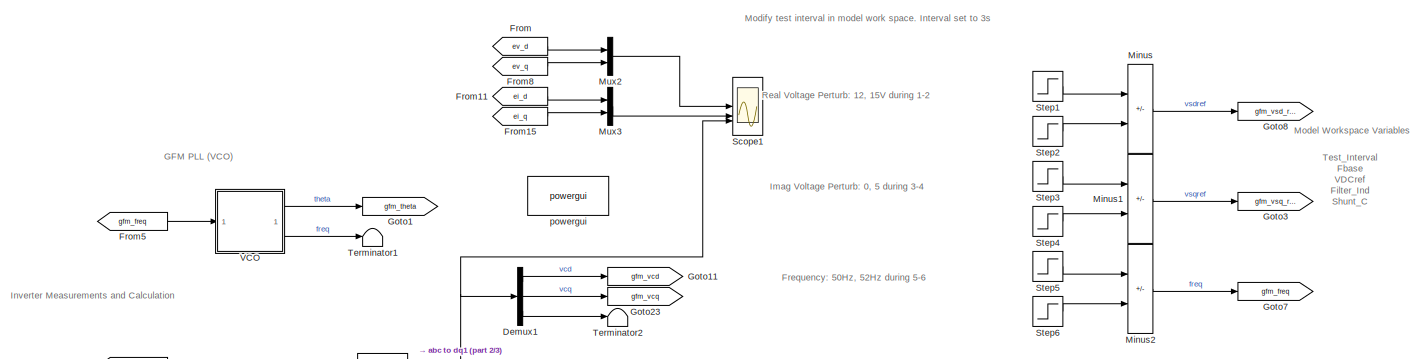
[diagram: root canvas - part 1/3, top center region]
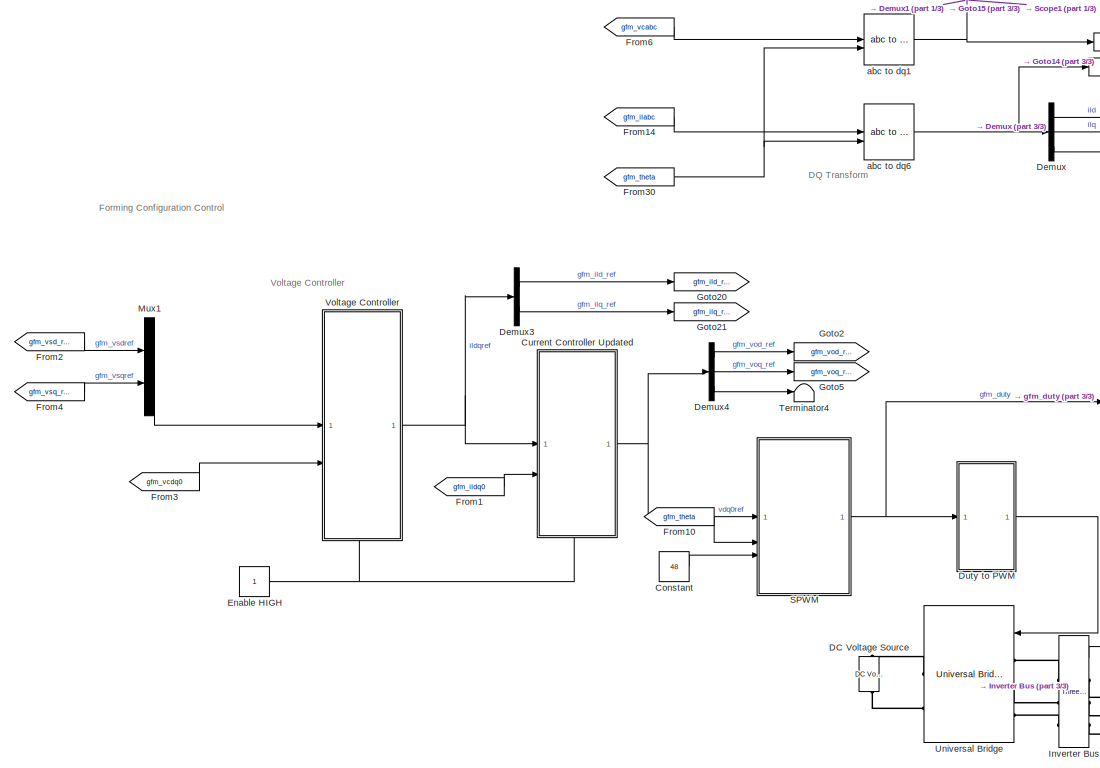
[diagram: root canvas - part 2/3, middle left region]
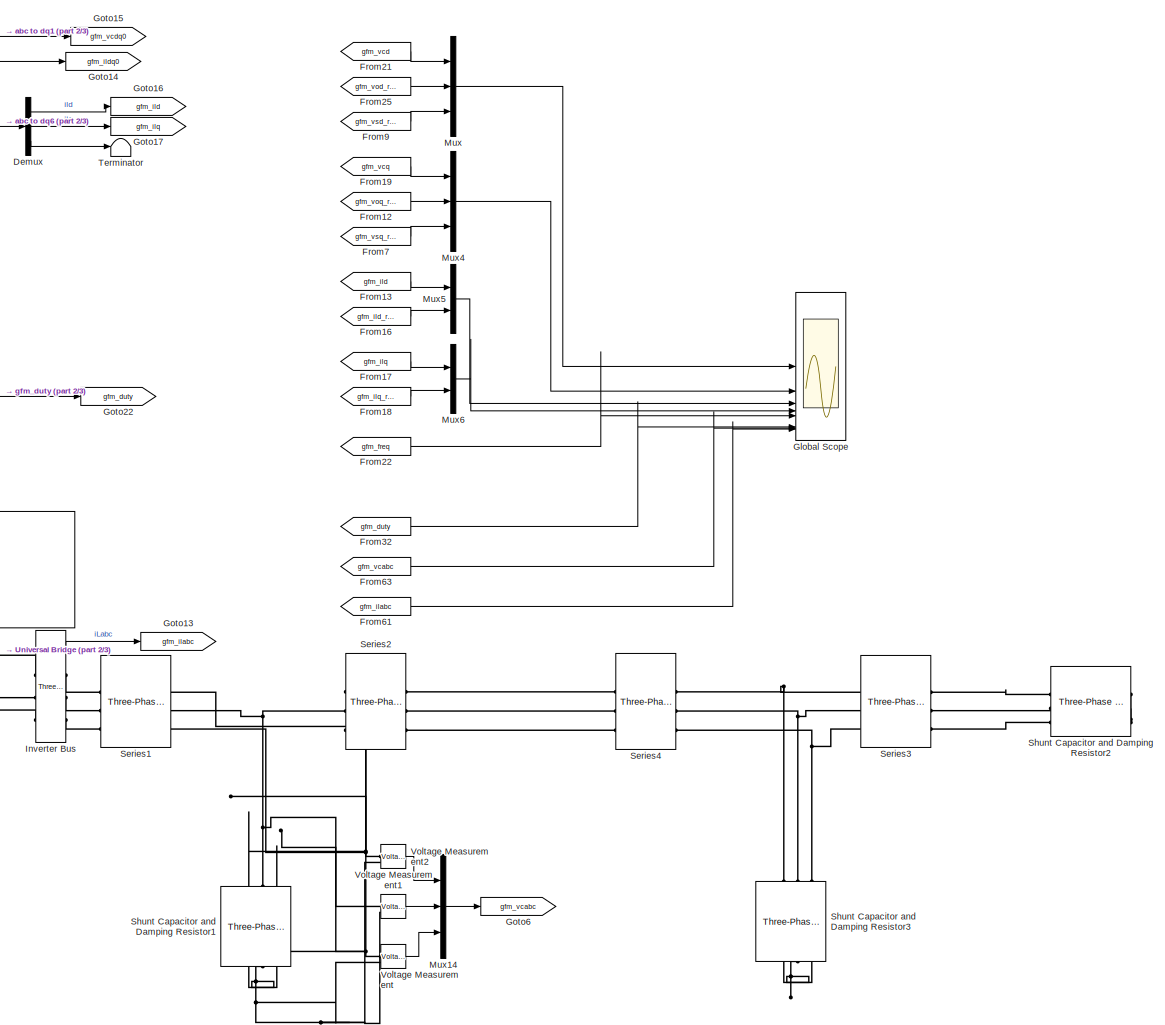
[diagram: root canvas - part 3/3, right side, full height]
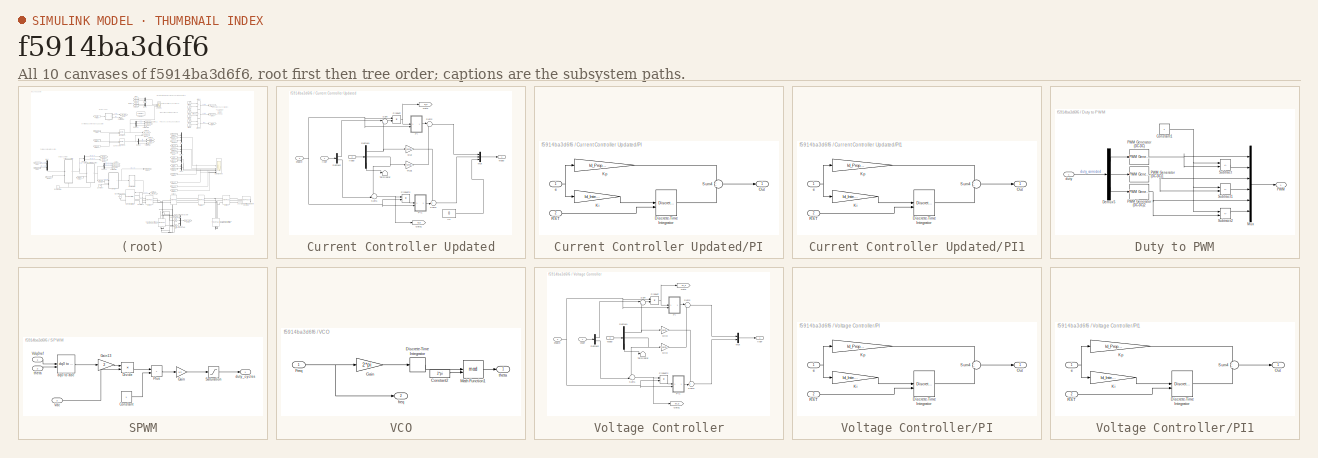
[diagram: thumbnail index - all 10 canvases of the model, root first then tree order]
MODEL slx_f5914ba3d6f6
KIND model
CONFIG AbsTol = auto
CONFIG EnableMultiTasking = off
CONFIG FixedStep = 1e-6
CONFIG MaxStep = auto
CONFIG MinStep = auto
CONFIG RelTol = 1e-3
CONFIG SampleTimeConstraint = Unconstrained
CONFIG SolverName = FixedStepAuto
CONFIG StartTime = 0.0
CONFIG StopTime = 4
WORKSPACE source: mxarray member
WORKSPACE Fbase = 50
WORKSPACE Filter_Ind = 0.00435
WORKSPACE Fs = 10000
WORKSPACE Series1_L = 0.004
WORKSPACE Series2_L = 0.00035
WORKSPACE Shunt_C = 2.2e-06
WORKSPACE Snubber_C = inf
WORKSPACE Snubber_R = 100000
WORKSPACE Test_Interval = 3
WORKSPACE Ts = 0.0001
WORKSPACE VDCref = 48
BLOCK [Constant] Constant
  Value = 48
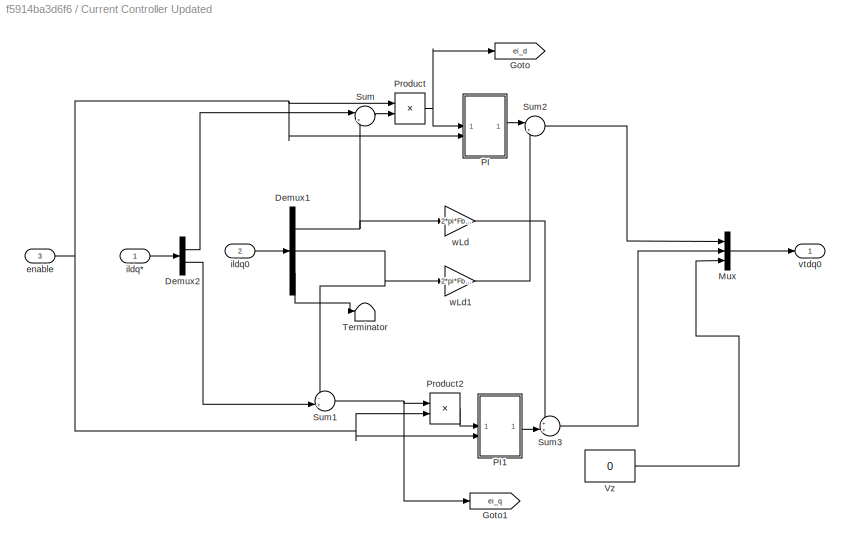
BLOCK [SubSystem] Current Controller Updated
  PortSchema = {"entries":[{"content":{"sides":[{"content":{"connectorIds":["In1","In2"]},"type":"ConnectorPlacement.EquallySpacedRectSide","uuid":"134caf41-c34b-48d0-a71a-522329c40d8c"},{"content":{"connectorIds":["Out1"],"side":"RIGHT"},"type":"ConnectorPlacement.EquallySpacedRectSide","uuid":"de6d8359-09d9-4cb7-8990-bc4b6d48f18d"},{"content":{"connectorIds":[],"side":"TOP"},"type":"ConnectorPlacement.EquallyS...<+395ch>
BLOCK [Demux] Current Controller Updated/Demux1
  Outputs = 3
BLOCK [Demux] Current Controller Updated/Demux2
  Outputs = 2
BLOCK [Goto] Current Controller Updated/Goto
  GotoTag = ei_d
  TagVisibility = global
BLOCK [Goto] Current Controller Updated/Goto1
  GotoTag = ei_q
  TagVisibility = global
BLOCK [Mux] Current Controller Updated/Mux
  DisplayOption = bar
  Inputs = 3
BLOCK [SubSystem] Current Controller Updated/PI
BLOCK [DiscreteIntegrator] Current Controller Updated/PI/Discrete-Time Integrator
  ExternalReset = either
  ICPrevOutput = DiscIntNeverNeededParam
  ICPrevScaledInput = DiscIntNeverNeededParam
  LimitOutput = on
  LowerSaturationLimit = -20000
  SampleTime = Ts
  UpperSaturationLimit = 20000
  gainval = 1
BLOCK [Gain] Current Controller Updated/PI/Ki
  Gain = Id_Integral
  OutDataTypeStr = Inherit: Same as input
  ParamDataTypeStr = Inherit: Same as input
  SaturateOnIntegerOverflow = on
BLOCK [Gain] Current Controller Updated/PI/Kp
  Gain = Id_Proportional
  OutDataTypeStr = Inherit: Same as input
  ParamDataTypeStr = Inherit: Same as input
  SaturateOnIntegerOverflow = on
BLOCK [Outport] Current Controller Updated/PI/Out
BLOCK [Inport] Current Controller Updated/PI/RST
  Port = 2
BLOCK [Sum] Current Controller Updated/PI/Sum4
  SaturateOnIntegerOverflow = on
BLOCK [Inport] Current Controller Updated/PI/e
BLOCK [SubSystem] Current Controller Updated/PI1
BLOCK [DiscreteIntegrator] Current Controller Updated/PI1/Discrete-Time Integrator
  ExternalReset = either
  ICPrevOutput = DiscIntNeverNeededParam
  ICPrevScaledInput = DiscIntNeverNeededParam
  LimitOutput = on
  LowerSaturationLimit = -20000
  SampleTime = Ts
  UpperSaturationLimit = 20000
  gainval = 1
BLOCK [Gain] Current Controller Updated/PI1/Ki
  Gain = Id_Integral
  OutDataTypeStr = Inherit: Same as input
  ParamDataTypeStr = Inherit: Same as input
  SaturateOnIntegerOverflow = on
BLOCK [Gain] Current Controller Updated/PI1/Kp
  Gain = Id_Proportional
  OutDataTypeStr = Inherit: Same as input
  ParamDataTypeStr = Inherit: Same as input
  SaturateOnIntegerOverflow = on
BLOCK [Outport] Current Controller Updated/PI1/Out
BLOCK [Inport] Current Controller Updated/PI1/RST
  Port = 2
BLOCK [Sum] Current Controller Updated/PI1/Sum4
  SaturateOnIntegerOverflow = on
BLOCK [Inport] Current Controller Updated/PI1/e
BLOCK [Product] Current Controller Updated/Product
  RndMeth = Zero
BLOCK [Product] Current Controller Updated/Product2
  RndMeth = Zero
BLOCK [Sum] Current Controller Updated/Sum
  Inputs = |+-
BLOCK [Sum] Current Controller Updated/Sum1
  Inputs = -+|
BLOCK [Sum] Current Controller Updated/Sum2
  Inputs = |+-
BLOCK [Sum] Current Controller Updated/Sum3
  Inputs = ++|
BLOCK [Terminator] Current Controller Updated/Terminator
BLOCK [Constant] Current Controller Updated/Vz
  Value = 0
BLOCK [Inport] Current Controller Updated/enable
  Port = 3
BLOCK [Inport] Current Controller Updated/ildq*
BLOCK [Inport] Current Controller Updated/ildq0
  Port = 2
BLOCK [Outport] Current Controller Updated/vtdq0
BLOCK [Gain] Current Controller Updated/wLd
  Gain = 2*pi*Fbase*Filter_Ind
BLOCK [Gain] Current Controller Updated/wLd1
  Gain = 2*pi*Fbase*Filter_Ind
BLOCK [Reference] DC Voltage Source  REF=spsDCVoltageSourceLib/DC Voltage Source
  LibrarySourceBlock = sps_lib/Sources/DC Voltage Source
  SourceBlock = spsDCVoltageSourceLib/DC Voltage Source
  SourceType = DC Voltage Source
BLOCK [Demux] Demux
  Outputs = 3
BLOCK [Demux] Demux1
  Outputs = 3
BLOCK [Demux] Demux3
  Outputs = 2
BLOCK [Demux] Demux4
  Outputs = 3
BLOCK [SubSystem] Duty to PWM
BLOCK [Constant] Duty to PWM/Constant1
BLOCK [Demux] Duty to PWM/Demux5
  Outputs = 3
BLOCK [Mux] Duty to PWM/Mux
  DisplayOption = bar
  Inputs = 6
BLOCK [Outport] Duty to PWM/PWM
BLOCK [Reference] Duty to PWM/PWM Generator (DC-DC)  REF=spsPWMGeneratorDCDCLib/PWM Generator
(DC-DC)
  LibrarySourceBlock = sps_lib/Power Electronics/Power Electronics Control/PWM Generator\n(DC-DC)
  SourceBlock = spsPWMGeneratorDCDCLib/PWM Generator\n(DC-DC)
  SourceType = PWM Generator (DC-DC)
BLOCK [Reference] Duty to PWM/PWM Generator (DC-DC)1  REF=spsPWMGeneratorDCDCLib/PWM Generator
(DC-DC)
  LibrarySourceBlock = sps_lib/Power Electronics/Power Electronics Control/PWM Generator\n(DC-DC)
  SourceBlock = spsPWMGeneratorDCDCLib/PWM Generator\n(DC-DC)
  SourceType = PWM Generator (DC-DC)
BLOCK [Reference] Duty to PWM/PWM Generator (DC-DC)2  REF=spsPWMGeneratorDCDCLib/PWM Generator
(DC-DC)
  LibrarySourceBlock = sps_lib/Power Electronics/Power Electronics Control/PWM Generator\n(DC-DC)
  SourceBlock = spsPWMGeneratorDCDCLib/PWM Generator\n(DC-DC)
  SourceType = PWM Generator (DC-DC)
BLOCK [Sum] Duty to PWM/Subtract
  IconShape = rectangular
  Inputs = +-
BLOCK [Sum] Duty to PWM/Subtract1
  IconShape = rectangular
  Inputs = +-
BLOCK [Sum] Duty to PWM/Subtract2
  IconShape = rectangular
  Inputs = +-
BLOCK [Inport] Duty to PWM/duty
BLOCK [Constant] Enable HIGH
BLOCK [From] From
  GotoTag = ev_d
  TagVisibility = global
BLOCK [From] From1
  CloseFcn = tagdialog Close
  GotoTag = gfm_ildq0
  NameLocation = top
BLOCK [From] From10
  CloseFcn = tagdialog Close
  GotoTag = gfm_theta
  NameLocation = top
BLOCK [From] From11
  GotoTag = ei_d
  TagVisibility = global
BLOCK [From] From12
  CloseFcn = tagdialog Close
  Commented = on
  GotoTag = gfm_voq_ref
  NameLocation = top
BLOCK [From] From13
  CloseFcn = tagdialog Close
  Commented = on
  GotoTag = gfm_ild
  NameLocation = top
BLOCK [From] From14
  CloseFcn = tagdialog Close
  GotoTag = gfm_ilabc
  NameLocation = top
BLOCK [From] From15
  GotoTag = ei_q
  TagVisibility = global
BLOCK [From] From16
  CloseFcn = tagdialog Close
  Commented = on
  GotoTag = gfm_ild_ref
  NameLocation = top
BLOCK [From] From17
  CloseFcn = tagdialog Close
  Commented = on
  GotoTag = gfm_ilq
  NameLocation = top
BLOCK [From] From18
  CloseFcn = tagdialog Close
  Commented = on
  GotoTag = gfm_ilq_ref
  NameLocation = top
BLOCK [From] From19
  CloseFcn = tagdialog Close
  GotoTag = gfm_vcq
  NameLocation = top
BLOCK [From] From2
  CloseFcn = tagdialog Close
  GotoTag = gfm_vsd_ref
  NameLocation = top
BLOCK [From] From21
  CloseFcn = tagdialog Close
  GotoTag = gfm_vcd
  NameLocation = top
BLOCK [From] From22
  Commented = on
  GotoTag = gfm_freq
BLOCK [From] From25
  CloseFcn = tagdialog Close
  Commented = on
  GotoTag = gfm_vod_ref
  NameLocation = top
BLOCK [From] From3
  CloseFcn = tagdialog Close
  GotoTag = gfm_vcdq0
  NameLocation = top
BLOCK [From] From30
  CloseFcn = tagdialog Close
  GotoTag = gfm_theta
  NameLocation = top
BLOCK [From] From32
  CloseFcn = tagdialog Close
  Commented = on
  GotoTag = gfm_duty
  NameLocation = top
BLOCK [From] From4
  CloseFcn = tagdialog Close
  GotoTag = gfm_vsq_ref
  NameLocation = top
BLOCK [From] From5
  GotoTag = gfm_freq
BLOCK [From] From6
  CloseFcn = tagdialog Close
  GotoTag = gfm_vcabc
  NameLocation = top
BLOCK [From] From61
  CloseFcn = tagdialog Close
  Commented = on
  GotoTag = gfm_ilabc
  NameLocation = top
BLOCK [From] From63
  CloseFcn = tagdialog Close
  Commented = on
  GotoTag = gfm_vcabc
  NameLocation = top
BLOCK [From] From7
  CloseFcn = tagdialog Close
  GotoTag = gfm_vsq_ref
  NameLocation = top
BLOCK [From] From8
  GotoTag = ev_q
  TagVisibility = global
BLOCK [From] From9
  CloseFcn = tagdialog Close
  GotoTag = gfm_vsd_ref
  NameLocation = top
BLOCK [Scope] Global Scope
  Floating = off
  NumInputPorts = 12
  ScopeSpecificationString = Simulink.scopes.TimeScopeBlockCfg('CurrentConfiguration', extmgr.ConfigurationSet(extmgr.Configuration('Core','General UI',true,'FigureColor',[1 1 1]),extmgr.Configuration('Core','Source UI',true),extmgr.Configuration('Sources','WiredSimulink',true,'DataLoggingSaveFormat','StructureWithTime','DataLoggingVariableName','GFMData','DataLogging',true),extmgr.Configuration('Visuals','Time Domain',true,'...<+10765ch>
BLOCK [Goto] Goto1
  GotoTag = gfm_theta
BLOCK [Goto] Goto11
  GotoTag = gfm_vcd
BLOCK [Goto] Goto13
  GotoTag = gfm_ilabc
BLOCK [Goto] Goto14
  GotoTag = gfm_ildq0
BLOCK [Goto] Goto15
  GotoTag = gfm_vcdq0
BLOCK [Goto] Goto16
  GotoTag = gfm_ild
BLOCK [Goto] Goto17
  GotoTag = gfm_ilq
BLOCK [Goto] Goto2
  GotoTag = gfm_vod_ref
BLOCK [Goto] Goto20
  GotoTag = gfm_ild_ref
BLOCK [Goto] Goto21
  GotoTag = gfm_ilq_ref
BLOCK [Goto] Goto22
  GotoTag = gfm_duty
BLOCK [Goto] Goto23
  GotoTag = gfm_vcq
BLOCK [Goto] Goto3
  GotoTag = gfm_vsq_ref
BLOCK [Goto] Goto5
  GotoTag = gfm_voq_ref
BLOCK [Goto] Goto6
  GotoTag = gfm_vcabc
BLOCK [Goto] Goto7
  GotoTag = gfm_freq
BLOCK [Goto] Goto8
  GotoTag = gfm_vsd_ref
BLOCK [Reference] Inverter Bus  REF=spsThreePhaseVIMeasurementLib/Three-Phase
V-I Measurement
  SourceBlock = spsThreePhaseVIMeasurementLib/Three-Phase\nV-I Measurement
  SourceType = Three-Phase VI Measurement
BLOCK [Sum] Minus
  IconShape = rectangular
  Inputs = +-
BLOCK [Sum] Minus1
  IconShape = rectangular
  Inputs = +-
BLOCK [Sum] Minus2
  IconShape = rectangular
  Inputs = +-
BLOCK [Mux] Mux
  DisplayOption = bar
  Inputs = 3
BLOCK [Mux] Mux1
  DisplayOption = bar
  Inputs = 2
BLOCK [Mux] Mux14
  DisplayOption = bar
  Inputs = 3
BLOCK [Mux] Mux2
  DisplayOption = bar
  Inputs = 2
BLOCK [Mux] Mux3
  DisplayOption = bar
  Inputs = 2
BLOCK [Mux] Mux4
  DisplayOption = bar
  Inputs = 3
BLOCK [Mux] Mux5
  Commented = on
  DisplayOption = bar
  Inputs = 2
BLOCK [Mux] Mux6
  Commented = on
  DisplayOption = bar
  Inputs = 2
BLOCK [SubSystem] SPWM
BLOCK [Constant] SPWM/Constant
BLOCK [Product] SPWM/Divide
  Inputs = */
BLOCK [Gain] SPWM/Gain
  Gain = 1/2
BLOCK [Gain] SPWM/Gain13
  Gain = 2
BLOCK [Sum] SPWM/Plus
  IconShape = rectangular
BLOCK [Saturate] SPWM/Saturation
  LowerLimit = 0.1
  UpperLimit = 0.9
BLOCK [Inport] SPWM/Vdc
  Port = 3
BLOCK [Inport] SPWM/Vdq0ref
BLOCK [Reference] SPWM/dq0 to abc  REF=spsdq0toabcLib/dq0 to abc
  LibrarySourceBlock = sps_lib/Control/dq0 to abc
  SourceBlock = spsdq0toabcLib/dq0 to abc
  SourceType = dq0 to abc Transformation
BLOCK [Outport] SPWM/duty_cycles
BLOCK [Inport] SPWM/theta
  Port = 2
BLOCK [Scope] Scope1
  Commented = on
  Floating = off
  NumInputPorts = 3
  ScopeSpecificationString = Simulink.scopes.TimeScopeBlockCfg('CurrentConfiguration', extmgr.ConfigurationSet(extmgr.Configuration('Core','General UI',true),extmgr.Configuration('Core','Source UI',true),extmgr.Configuration('Sources','WiredSimulink',true,'DataLoggingVariableName','ScopeData2'),extmgr.Configuration('Visuals','Time Domain',true,'SerializedDisplays',{struct('MinYLimReal','-7.49198','MaxYLimReal','14.16578','YLa...<+2757ch>
BLOCK [Reference] Series1  REF=spsThreePhaseSeriesRLCBranchLib/Three-Phase
Series RLC Branch
  AttributesFormatString = \n
  SourceBlock = spsThreePhaseSeriesRLCBranchLib/Three-Phase\nSeries RLC Branch
  SourceType = Three-Phase Series RLC Branch
BLOCK [Reference] Series2  REF=spsThreePhaseSeriesRLCBranchLib/Three-Phase
Series RLC Branch
  AttributesFormatString = \n
  SourceBlock = spsThreePhaseSeriesRLCBranchLib/Three-Phase\nSeries RLC Branch
  SourceType = Three-Phase Series RLC Branch
BLOCK [Reference] Series3  REF=spsThreePhaseSeriesRLCBranchLib/Three-Phase
Series RLC Branch
  AttributesFormatString = \n
  SourceBlock = spsThreePhaseSeriesRLCBranchLib/Three-Phase\nSeries RLC Branch
  SourceType = Three-Phase Series RLC Branch
BLOCK [Reference] Series4  REF=spsThreePhaseSeriesRLCBranchLib/Three-Phase
Series RLC Branch
  AttributesFormatString = \n
  SourceBlock = spsThreePhaseSeriesRLCBranchLib/Three-Phase\nSeries RLC Branch
  SourceType = Three-Phase Series RLC Branch
BLOCK [Reference] Shunt Capacitor and Damping Resistor1  REF=spsThreePhaseSeriesRLCBranchLib/Three-Phase
Series RLC Branch
  AttributesFormatString = \n
  NameLocation = left
  SourceBlock = spsThreePhaseSeriesRLCBranchLib/Three-Phase\nSeries RLC Branch
  SourceType = Three-Phase Series RLC Branch
BLOCK [Reference] Shunt Capacitor and Damping Resistor2  REF=spsThreePhaseSeriesRLCBranchLib/Three-Phase
Series RLC Branch
  AttributesFormatString = \n
  NameLocation = top
  SourceBlock = spsThreePhaseSeriesRLCBranchLib/Three-Phase\nSeries RLC Branch
  SourceType = Three-Phase Series RLC Branch
BLOCK [Reference] Shunt Capacitor and Damping Resistor3  REF=spsThreePhaseSeriesRLCBranchLib/Three-Phase
Series RLC Branch
  AttributesFormatString = \n
  NameLocation = left
  SourceBlock = spsThreePhaseSeriesRLCBranchLib/Three-Phase\nSeries RLC Branch
  SourceType = Three-Phase Series RLC Branch
BLOCK [Step] Step1
  After = 15
  Before = 12
  Time = Test_Interval*1
BLOCK [Step] Step2
  After = 3
  Time = Test_Interval*2
BLOCK [Step] Step3
  After = 5
  Time = Test_Interval*3
BLOCK [Step] Step4
  After = 5
  Time = Test_Interval*4
BLOCK [Step] Step5
  After = 52
  Before = 50
  SampleTime = 0
  Time = Test_Interval*5
BLOCK [Step] Step6
  After = 2
  Time = Test_Interval*6
BLOCK [Terminator] Terminator
BLOCK [Terminator] Terminator1
BLOCK [Terminator] Terminator2
BLOCK [Terminator] Terminator4
BLOCK [Reference] Universal Bridge  REF=spsUniversalBridgeLib/Universal Bridge
  SourceBlock = spsUniversalBridgeLib/Universal Bridge
  SourceType = Universal Bridge
BLOCK [SubSystem] VCO
BLOCK [Constant] VCO/Constant2
  NameLocation = top
  Value = 2*pi
BLOCK [DiscreteIntegrator] VCO/Discrete-Time Integrator
  ICPrevOutput = DiscIntNeverNeededParam
  ICPrevScaledInput = DiscIntNeverNeededParam
  SampleTime = Ts
BLOCK [Inport] VCO/Freq
BLOCK [Gain] VCO/Gain
  Gain = 2*pi
BLOCK [Math] VCO/Math Function1
  Operator = mod
  SignedPower = on
BLOCK [Outport] VCO/freq
  Port = 2
BLOCK [Outport] VCO/theta
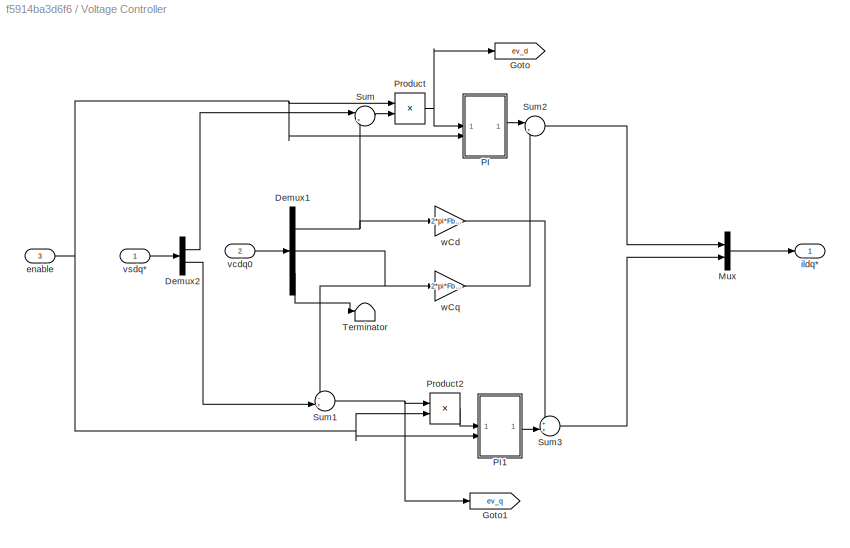
BLOCK [SubSystem] Voltage Controller
  PortSchema = {"entries":[{"content":{"sides":[{"content":{"connectorIds":["In1","In2"]},"type":"ConnectorPlacement.EquallySpacedRectSide","uuid":"134caf41-c34b-48d0-a71a-522329c40d8c"},{"content":{"connectorIds":["Out1"],"side":"RIGHT"},"type":"ConnectorPlacement.EquallySpacedRectSide","uuid":"de6d8359-09d9-4cb7-8990-bc4b6d48f18d"},{"content":{"connectorIds":[],"side":"TOP"},"type":"ConnectorPlacement.EquallyS...<+395ch>
BLOCK [Demux] Voltage Controller/Demux1
  Outputs = 3
BLOCK [Demux] Voltage Controller/Demux2
  Outputs = 2
BLOCK [Goto] Voltage Controller/Goto
  GotoTag = ev_d
  TagVisibility = global
BLOCK [Goto] Voltage Controller/Goto1
  GotoTag = ev_q
  TagVisibility = global
BLOCK [Mux] Voltage Controller/Mux
  DisplayOption = bar
  Inputs = 2
BLOCK [SubSystem] Voltage Controller/PI
BLOCK [DiscreteIntegrator] Voltage Controller/PI/Discrete-Time Integrator
  ExternalReset = either
  ICPrevOutput = DiscIntNeverNeededParam
  ICPrevScaledInput = DiscIntNeverNeededParam
  LimitOutput = on
  LowerSaturationLimit = -2000
  SampleTime = Ts
  UpperSaturationLimit = 2000
  gainval = 1
BLOCK [Gain] Voltage Controller/PI/Ki
  Gain = Id_Integral
  OutDataTypeStr = Inherit: Same as input
  ParamDataTypeStr = Inherit: Same as input
  SaturateOnIntegerOverflow = on
BLOCK [Gain] Voltage Controller/PI/Kp
  Gain = Id_Proportional
  OutDataTypeStr = Inherit: Same as input
  ParamDataTypeStr = Inherit: Same as input
  SaturateOnIntegerOverflow = on
BLOCK [Outport] Voltage Controller/PI/Out
BLOCK [Inport] Voltage Controller/PI/RST
  Port = 2
BLOCK [Sum] Voltage Controller/PI/Sum4
  SaturateOnIntegerOverflow = on
BLOCK [Inport] Voltage Controller/PI/e
BLOCK [SubSystem] Voltage Controller/PI1
BLOCK [DiscreteIntegrator] Voltage Controller/PI1/Discrete-Time Integrator
  ExternalReset = either
  ICPrevOutput = DiscIntNeverNeededParam
  ICPrevScaledInput = DiscIntNeverNeededParam
  LimitOutput = on
  LowerSaturationLimit = -2000
  SampleTime = Ts
  UpperSaturationLimit = 2000
  gainval = 1
BLOCK [Gain] Voltage Controller/PI1/Ki
  Gain = Id_Integral
  OutDataTypeStr = Inherit: Same as input
  ParamDataTypeStr = Inherit: Same as input
  SaturateOnIntegerOverflow = on
BLOCK [Gain] Voltage Controller/PI1/Kp
  Gain = Id_Proportional
  OutDataTypeStr = Inherit: Same as input
  ParamDataTypeStr = Inherit: Same as input
  SaturateOnIntegerOverflow = on
BLOCK [Outport] Voltage Controller/PI1/Out
BLOCK [Inport] Voltage Controller/PI1/RST
  Port = 2
BLOCK [Sum] Voltage Controller/PI1/Sum4
  SaturateOnIntegerOverflow = on
BLOCK [Inport] Voltage Controller/PI1/e
BLOCK [Product] Voltage Controller/Product
  RndMeth = Zero
BLOCK [Product] Voltage Controller/Product2
  RndMeth = Zero
BLOCK [Sum] Voltage Controller/Sum
  Inputs = |+-
BLOCK [Sum] Voltage Controller/Sum1
  Inputs = -+|
BLOCK [Sum] Voltage Controller/Sum2
  Inputs = |+-
BLOCK [Sum] Voltage Controller/Sum3
  Inputs = ++|
BLOCK [Terminator] Voltage Controller/Terminator
BLOCK [Inport] Voltage Controller/enable
  Port = 3
BLOCK [Outport] Voltage Controller/ildq*
BLOCK [Inport] Voltage Controller/vcdq0
  Port = 2
BLOCK [Inport] Voltage Controller/vsdq*
BLOCK [Gain] Voltage Controller/wCd
  Gain = 2*pi*Fbase*Shunt_C
BLOCK [Gain] Voltage Controller/wCq
  Gain = 2*pi*Fbase*Shunt_C
BLOCK [Reference] Voltage Measurement  REF=spsVoltageMeasurementLib/Voltage Measurement
  LibrarySourceBlock = sps_lib/Sensors and Measurements/Voltage Measurement
  SourceBlock = spsVoltageMeasurementLib/Voltage Measurement
  SourceType = Voltage Measurement
  UserDataPersistent = on
BLOCK [Reference] Voltage Measurement1  REF=spsVoltageMeasurementLib/Voltage Measurement
  LibrarySourceBlock = sps_lib/Sensors and Measurements/Voltage Measurement
  SourceBlock = spsVoltageMeasurementLib/Voltage Measurement
  SourceType = Voltage Measurement
  UserDataPersistent = on
BLOCK [Reference] Voltage Measurement2  REF=spsVoltageMeasurementLib/Voltage Measurement
  LibrarySourceBlock = sps_lib/Sensors and Measurements/Voltage Measurement
  SourceBlock = spsVoltageMeasurementLib/Voltage Measurement
  SourceType = Voltage Measurement
  UserDataPersistent = on
BLOCK [Reference] abc to dq1  REF=spsabctodq0Lib/abc to dq0
  LibrarySourceBlock = sps_lib/Control/abc to dq0
  SourceBlock = spsabctodq0Lib/abc to dq0
  SourceType = abc to dq0 Transformation
BLOCK [Reference] abc to dq6  REF=spsabctodq0Lib/abc to dq0
  LibrarySourceBlock = sps_lib/Control/abc to dq0
  SourceBlock = spsabctodq0Lib/abc to dq0
  SourceType = abc to dq0 Transformation
BLOCK [Reference] powergui  REF=spspowerguiLib/powergui
  Priority = 1
  SourceBlock = spspowerguiLib/powergui
  SourceType = PSB option menu block
ANNOTATION (root): DQ Transform
ANNOTATION (root): Forming Configuration Control
ANNOTATION (root): Frequency: 50Hz, 52Hz during 5-6
ANNOTATION (root): GFM PLL (VCO)
ANNOTATION (root): Imag Voltage Perturb: 0, 5 during 3-4
ANNOTATION (root): Inverter Measurements and Calculation
ANNOTATION (root): Model Workspace Variables
ANNOTATION (root): Modify test interval in model work space. Interval set to 3s
ANNOTATION (root): Real Voltage Perturb: 12, 15V during 1-2
ANNOTATION (root): Test_Interval Fbase VDCref Filter_Ind Shunt_C
ANNOTATION (root): Voltage Controller
LINE Constant:1 -> SPWM:3
NET Current Controller Updated/Demux1:1 -> Current Controller Updated/Sum:2, Current Controller Updated/wLd:1
NET Current Controller Updated/Demux1:2 -> Current Controller Updated/Sum1:1, Current Controller Updated/wLd1:1
LINE Current Controller Updated/Demux1:3 -> Current Controller Updated/Terminator:1
LINE Current Controller Updated/Demux2:1 -> Current Controller Updated/Sum:1
LINE Current Controller Updated/Demux2:2 -> Current Controller Updated/Sum1:2
LINE Current Controller Updated/Mux:1 -> Current Controller Updated/vtdq0:1
LINE Current Controller Updated/PI/Discrete-Time Integrator:1 -> Current Controller Updated/PI/Sum4:2
LINE Current Controller Updated/PI/Ki:1 -> Current Controller Updated/PI/Discrete-Time Integrator:1
LINE Current Controller Updated/PI/Kp:1 -> Current Controller Updated/PI/Sum4:1
LINE Current Controller Updated/PI/RST:1 -> Current Controller Updated/PI/Discrete-Time Integrator:2
LINE Current Controller Updated/PI/Sum4:1 -> Current Controller Updated/PI/Out:1
NET Current Controller Updated/PI/e:1 -> Current Controller Updated/PI/Ki:1, Current Controller Updated/PI/Kp:1
LINE Current Controller Updated/PI1/Discrete-Time Integrator:1 -> Current Controller Updated/PI1/Sum4:2
LINE Current Controller Updated/PI1/Ki:1 -> Current Controller Updated/PI1/Discrete-Time Integrator:1
LINE Current Controller Updated/PI1/Kp:1 -> Current Controller Updated/PI1/Sum4:1
LINE Current Controller Updated/PI1/RST:1 -> Current Controller Updated/PI1/Discrete-Time Integrator:2
LINE Current Controller Updated/PI1/Sum4:1 -> Current Controller Updated/PI1/Out:1
NET Current Controller Updated/PI1/e:1 -> Current Controller Updated/PI1/Ki:1, Current Controller Updated/PI1/Kp:1
LINE Current Controller Updated/PI1:1 -> Current Controller Updated/Sum3:2
LINE Current Controller Updated/PI:1 -> Current Controller Updated/Sum2:1
LINE Current Controller Updated/Product2:1 -> Current Controller Updated/PI1:1
NET Current Controller Updated/Product:1 -> Current Controller Updated/Goto:1, Current Controller Updated/PI:1
NET Current Controller Updated/Sum1:1 -> Current Controller Updated/Goto1:1, Current Controller Updated/Product2:1
LINE Current Controller Updated/Sum2:1 -> Current Controller Updated/Mux:1
LINE Current Controller Updated/Sum3:1 -> Current Controller Updated/Mux:2
LINE Current Controller Updated/Sum:1 -> Current Controller Updated/Product:2
LINE Current Controller Updated/Vz:1 -> Current Controller Updated/Mux:3
NET Current Controller Updated/enable:1 -> Current Controller Updated/PI1:2, Current Controller Updated/PI:2, Current Controller Updated/Product2:2, Current Controller Updated/Product:1
LINE Current Controller Updated/ildq*:1 -> Current Controller Updated/Demux2:1
LINE Current Controller Updated/ildq0:1 -> Current Controller Updated/Demux1:1
LINE Current Controller Updated/wLd1:1 -> Current Controller Updated/Sum2:2
LINE Current Controller Updated/wLd:1 -> Current Controller Updated/Sum3:1
NET Current Controller Updated:1 -> Demux4:1, SPWM:1
LINE Demux1:1 -> Goto11:1
LINE Demux1:2 -> Goto23:1
LINE Demux1:3 -> Terminator2:1
LINE Demux3:1 -> Goto20:1
LINE Demux3:2 -> Goto21:1
LINE Demux4:1 -> Goto2:1
LINE Demux4:2 -> Goto5:1
LINE Demux4:3 -> Terminator4:1
LINE Demux:1 -> Goto16:1
LINE Demux:2 -> Goto17:1
LINE Demux:3 -> Terminator:1
NET Duty to PWM/Constant1:1 -> Duty to PWM/Subtract1:1, Duty to PWM/Subtract2:1, Duty to PWM/Subtract:1
LINE Duty to PWM/Demux5:1 -> Duty to PWM/PWM Generator (DC-DC):1
LINE Duty to PWM/Demux5:2 -> Duty to PWM/PWM Generator (DC-DC)1:1
LINE Duty to PWM/Demux5:3 -> Duty to PWM/PWM Generator (DC-DC)2:1
LINE Duty to PWM/Mux:1 -> Duty to PWM/PWM:1
NET Duty to PWM/PWM Generator (DC-DC)1:1 -> Duty to PWM/Mux:3, Duty to PWM/Subtract1:2
NET Duty to PWM/PWM Generator (DC-DC)2:1 -> Duty to PWM/Mux:5, Duty to PWM/Subtract2:2
NET Duty to PWM/PWM Generator (DC-DC):1 -> Duty to PWM/Mux:1, Duty to PWM/Subtract:2
LINE Duty to PWM/Subtract1:1 -> Duty to PWM/Mux:4
LINE Duty to PWM/Subtract2:1 -> Duty to PWM/Mux:6
LINE Duty to PWM/Subtract:1 -> Duty to PWM/Mux:2
LINE Duty to PWM/duty:1 -> Duty to PWM/Demux5:1
LINE Duty to PWM:1 -> Universal Bridge:1
NET Enable HIGH:1 -> Current Controller Updated:3, Voltage Controller:3
LINE From10:1 -> SPWM:2
LINE From11:1 -> Mux3:1
LINE From12:1 -> Mux4:2
LINE From13:1 -> Mux5:1
LINE From14:1 -> abc to dq6:1
LINE From15:1 -> Mux3:2
LINE From16:1 -> Mux5:2
LINE From17:1 -> Mux6:1
LINE From18:1 -> Mux6:2
LINE From19:1 -> Mux4:1
LINE From1:1 -> Current Controller Updated:2
LINE From21:1 -> Mux:1
LINE From22:1 -> Global Scope:5
LINE From25:1 -> Mux:2
LINE From2:1 -> Mux1:1
NET From30:1 -> abc to dq1:2, abc to dq6:2
LINE From32:1 -> Global Scope:10
LINE From3:1 -> Voltage Controller:2
LINE From4:1 -> Mux1:2
LINE From5:1 -> VCO:1
LINE From61:1 -> Global Scope:12
LINE From63:1 -> Global Scope:11
LINE From6:1 -> abc to dq1:1
LINE From7:1 -> Mux4:3
LINE From8:1 -> Mux2:2
LINE From9:1 -> Mux:3
LINE From:1 -> Mux2:1
LINE Inverter Bus:1 -> Goto13:1
LINE Minus1:1 -> Goto3:1
LINE Minus2:1 -> Goto7:1
LINE Minus:1 -> Goto8:1
LINE Mux14:1 -> Goto6:1
LINE Mux1:1 -> Voltage Controller:1
LINE Mux2:1 -> Scope1:1
LINE Mux3:1 -> Scope1:2
LINE Mux4:1 -> Global Scope:2
LINE Mux5:1 -> Global Scope:3
LINE Mux6:1 -> Global Scope:4
LINE Mux:1 -> Global Scope:1
LINE SPWM/Constant:1 -> SPWM/Plus:2
LINE SPWM/Divide:1 -> SPWM/Plus:1
LINE SPWM/Gain13:1 -> SPWM/Divide:1
LINE SPWM/Gain:1 -> SPWM/Saturation:1
LINE SPWM/Plus:1 -> SPWM/Gain:1
LINE SPWM/Saturation:1 -> SPWM/duty_cycles:1
LINE SPWM/Vdc:1 -> SPWM/Divide:2
LINE SPWM/Vdq0ref:1 -> SPWM/dq0 to abc:1
LINE SPWM/dq0 to abc:1 -> SPWM/Gain13:1
LINE SPWM/theta:1 -> SPWM/dq0 to abc:2
NET SPWM:1 -> Duty to PWM:1, Goto22:1
LINE Step1:1 -> Minus:1
LINE Step2:1 -> Minus:2
LINE Step3:1 -> Minus1:1
LINE Step4:1 -> Minus1:2
LINE Step5:1 -> Minus2:1
LINE Step6:1 -> Minus2:2
LINE VCO/Constant2:1 -> VCO/Math Function1:2
LINE VCO/Discrete-Time Integrator:1 -> VCO/Math Function1:1
NET VCO/Freq:1 -> VCO/Gain:1, VCO/freq:1
LINE VCO/Gain:1 -> VCO/Discrete-Time Integrator:1
LINE VCO/Math Function1:1 -> VCO/theta:1
LINE VCO:1 -> Goto1:1
LINE VCO:2 -> Terminator1:1
NET Voltage Controller/Demux1:1 -> Voltage Controller/Sum:2, Voltage Controller/wCd:1
NET Voltage Controller/Demux1:2 -> Voltage Controller/Sum1:1, Voltage Controller/wCq:1
LINE Voltage Controller/Demux1:3 -> Voltage Controller/Terminator:1
LINE Voltage Controller/Demux2:1 -> Voltage Controller/Sum:1
LINE Voltage Controller/Demux2:2 -> Voltage Controller/Sum1:2
LINE Voltage Controller/Mux:1 -> Voltage Controller/ildq*:1
LINE Voltage Controller/PI/Discrete-Time Integrator:1 -> Voltage Controller/PI/Sum4:2
LINE Voltage Controller/PI/Ki:1 -> Voltage Controller/PI/Discrete-Time Integrator:1
LINE Voltage Controller/PI/Kp:1 -> Voltage Controller/PI/Sum4:1
LINE Voltage Controller/PI/RST:1 -> Voltage Controller/PI/Discrete-Time Integrator:2
LINE Voltage Controller/PI/Sum4:1 -> Voltage Controller/PI/Out:1
NET Voltage Controller/PI/e:1 -> Voltage Controller/PI/Ki:1, Voltage Controller/PI/Kp:1
LINE Voltage Controller/PI1/Discrete-Time Integrator:1 -> Voltage Controller/PI1/Sum4:2
LINE Voltage Controller/PI1/Ki:1 -> Voltage Controller/PI1/Discrete-Time Integrator:1
LINE Voltage Controller/PI1/Kp:1 -> Voltage Controller/PI1/Sum4:1
LINE Voltage Controller/PI1/RST:1 -> Voltage Controller/PI1/Discrete-Time Integrator:2
LINE Voltage Controller/PI1/Sum4:1 -> Voltage Controller/PI1/Out:1
NET Voltage Controller/PI1/e:1 -> Voltage Controller/PI1/Ki:1, Voltage Controller/PI1/Kp:1
LINE Voltage Controller/PI1:1 -> Voltage Controller/Sum3:2
LINE Voltage Controller/PI:1 -> Voltage Controller/Sum2:1
LINE Voltage Controller/Product2:1 -> Voltage Controller/PI1:1
NET Voltage Controller/Product:1 -> Voltage Controller/Goto:1, Voltage Controller/PI:1
NET Voltage Controller/Sum1:1 -> Voltage Controller/Goto1:1, Voltage Controller/Product2:1
LINE Voltage Controller/Sum2:1 -> Voltage Controller/Mux:1
LINE Voltage Controller/Sum3:1 -> Voltage Controller/Mux:2
LINE Voltage Controller/Sum:1 -> Voltage Controller/Product:2
NET Voltage Controller/enable:1 -> Voltage Controller/PI1:2, Voltage Controller/PI:2, Voltage Controller/Product2:2, Voltage Controller/Product:1
LINE Voltage Controller/vcdq0:1 -> Voltage Controller/Demux1:1
LINE Voltage Controller/vsdq*:1 -> Voltage Controller/Demux2:1
LINE Voltage Controller/wCd:1 -> Voltage Controller/Sum3:1
LINE Voltage Controller/wCq:1 -> Voltage Controller/Sum2:2
NET Voltage Controller:1 -> Current Controller Updated:1, Demux3:1
LINE Voltage Measurement1:1 -> Mux14:2
LINE Voltage Measurement2:1 -> Mux14:1
LINE Voltage Measurement:1 -> Mux14:3
NET abc to dq1:1 -> Demux1:1, Goto15:1, Scope1:3
NET abc to dq6:1 -> Demux:1, Goto14:1
PLINE DC Voltage Source:LConn1 -- Universal Bridge:RConn2
PLINE DC Voltage Source:RConn1 -- Universal Bridge:RConn1
PLINE Inverter Bus:LConn1 -- Universal Bridge:LConn1
PLINE Inverter Bus:LConn2 -- Universal Bridge:LConn2
PLINE Inverter Bus:LConn3 -- Universal Bridge:LConn3
PLINE Inverter Bus:RConn1 -- Series1:LConn1
PLINE Inverter Bus:RConn2 -- Series1:LConn2
PLINE Inverter Bus:RConn3 -- Series1:LConn3
PNET net1: Series1:RConn1 -- Series2:LConn1 -- Shunt Capacitor and Damping Resistor1:LConn1 -- Voltage Measurement2:LConn1
PNET net2: Series1:RConn2 -- Series2:LConn2 -- Shunt Capacitor and Damping Resistor1:LConn2 -- Voltage Measurement1:LConn1
PNET net3: Series1:RConn3 -- Series2:LConn3 -- Shunt Capacitor and Damping Resistor1:LConn3 -- Voltage Measurement:LConn1
PLINE Series2:RConn1 -- Series4:RConn1
PLINE Series2:RConn2 -- Series4:RConn2
PLINE Series2:RConn3 -- Series4:RConn3
PLINE Series3:LConn1 -- Shunt Capacitor and Damping Resistor2:RConn1
PLINE Series3:LConn2 -- Shunt Capacitor and Damping Resistor2:RConn2
PLINE Series3:LConn3 -- Shunt Capacitor and Damping Resistor2:RConn3
PNET net4: Series3:RConn1 -- Series4:LConn1 -- Shunt Capacitor and Damping Resistor3:LConn1
PNET net5: Series3:RConn2 -- Series4:LConn2 -- Shunt Capacitor and Damping Resistor3:LConn2
PNET net6: Series3:RConn3 -- Series4:LConn3 -- Shunt Capacitor and Damping Resistor3:LConn3
PNET net7: Shunt Capacitor and Damping Resistor1:RConn1 -- Shunt Capacitor and Damping Resistor1:RConn2 -- Shunt Capacitor and Damping Resistor1:RConn3 -- Voltage Measurement1:LConn2 -- Voltage Measurement2:LConn2 -- Voltage Measurement:LConn2
PNET net8: Shunt Capacitor and Damping Resistor2:LConn1 -- Shunt Capacitor and Damping Resistor2:LConn2 -- Shunt Capacitor and Damping Resistor2:LConn3
PNET net9: Shunt Capacitor and Damping Resistor3:RConn1 -- Shunt Capacitor and Damping Resistor3:RConn2 -- Shunt Capacitor and Damping Resistor3:RConn3
note: NET lines group one-source signal fan-out (src -> all destinations, sorted); 1:1 wires keep LINE; PNET lines group multi-terminal physical nets as a canonical sorted terminal list (undirected conserving connections); 2-terminal nets keep the pairwise PLINE form
